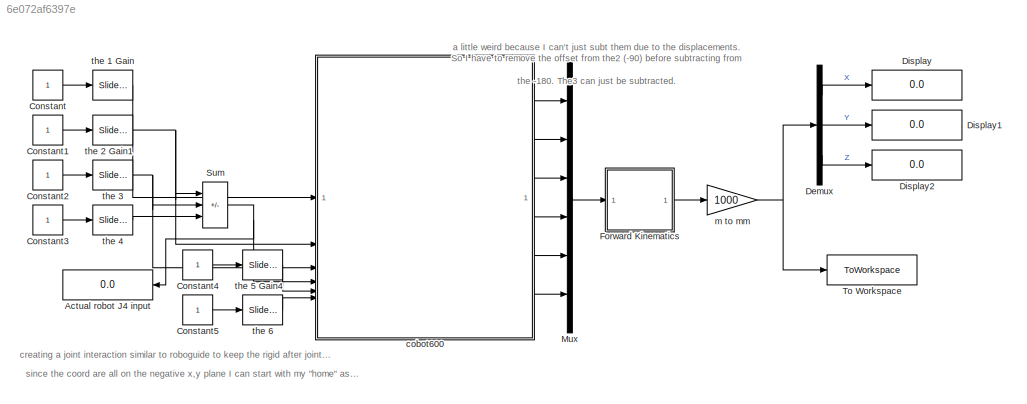
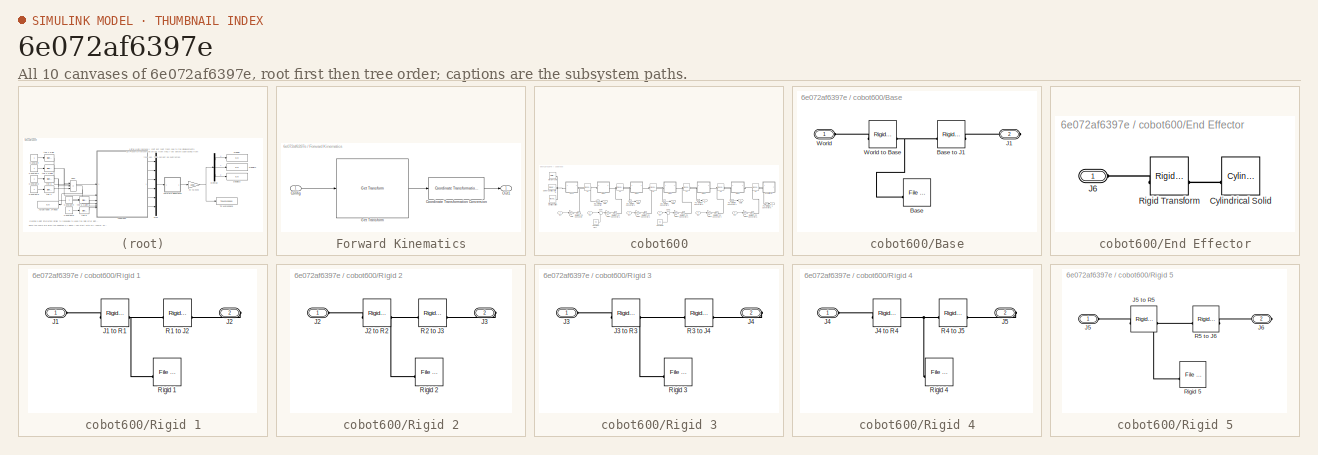
[diagram: thumbnail index - all 10 canvases of the model, root first then tree order]
MODEL slx_6e072af6397e
KIND model
CONFIG AbsTol = auto
CONFIG EnableMultiTasking = off
CONFIG FixedStep = auto
CONFIG MaxStep = auto
CONFIG MinStep = auto
CONFIG RelTol = 1e-3
CONFIG SampleTimeConstraint = Unconstrained
CONFIG SolverName = VariableStepAuto
CONFIG StartTime = 0.0
CONFIG StopTime = 3
BLOCK [Display] Actual robot J4 input
  Decimation = 1
BLOCK [Constant] Constant
BLOCK [Constant] Constant1
BLOCK [Constant] Constant2
BLOCK [Constant] Constant3
BLOCK [Constant] Constant4
BLOCK [Constant] Constant5
BLOCK [Demux] Demux
  Outputs = 3
BLOCK [Display] Display
  Decimation = 1
BLOCK [Display] Display1
  Decimation = 1
BLOCK [Display] Display2
  Decimation = 1
BLOCK [SubSystem] Forward Kinematics
BLOCK [Inport] Forward Kinematics/Config
BLOCK [Reference] Forward Kinematics/Coordinate Transformation Conversion  REF=robotcorelib/Coordinate Transformation Conversion
  LibrarySourceBlock = robotutilslib/Coordinate Transformation Conversion
  SourceBlock = robotcorelib/Coordinate Transformation Conversion
  SourceType = robotics.slcore.internal.block.CoordinateTransformationConversion
BLOCK [Reference] Forward Kinematics/Get Transform  REF=robotmaniplib/Get Transform
  SourceBlock = robotmaniplib/Get Transform
  SourceType = Get Transform
BLOCK [Outport] Forward Kinematics/Out1
BLOCK [Mux] Mux
  DisplayOption = bar
  Inputs = 6
BLOCK [Sum] Sum
  IconShape = rectangular
  Inputs = |--+
BLOCK [ToWorkspace] To Workspace
  FixptAsFi = on
  MaxDataPoints = inf
  SampleTime = -1
  Save2DSignal = 2-D array (concatenate along first dimension)
  VariableName = XYZ_Pos
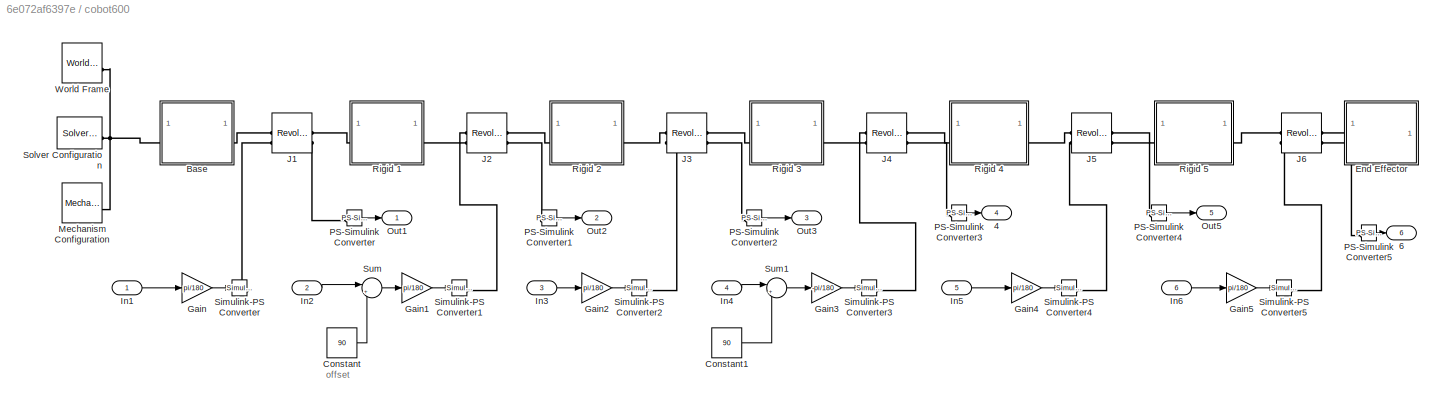
BLOCK [SubSystem] cobot600
BLOCK [Outport] cobot600/4
  Port = 4
BLOCK [Outport] cobot600/6
  NameLocation = top
  Port = 6
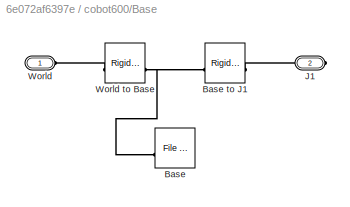
BLOCK [SubSystem] cobot600/Base
BLOCK [Reference] cobot600/Base/Base  REF=sm_lib/Body Elements/File Solid
  SourceBlock = sm_lib/Body Elements/File Solid
  SourceType = File Solid
BLOCK [Reference] cobot600/Base/Base to J1  REF=sm_lib/Frames and
Transforms/Rigid
Transform
  SourceBlock = sm_lib/Frames and\nTransforms/Rigid\nTransform
  SourceType = Rigid\nTransform
BLOCK [PMIOPort] cobot600/Base/J1
  Port = 2
  Side = Right
BLOCK [PMIOPort] cobot600/Base/World
  Side = Left
BLOCK [Reference] cobot600/Base/World to Base  REF=sm_lib/Frames and
Transforms/Rigid
Transform
  SourceBlock = sm_lib/Frames and\nTransforms/Rigid\nTransform
  SourceType = Rigid\nTransform
BLOCK [Constant] cobot600/Constant
  Value = 90
BLOCK [Constant] cobot600/Constant1
  Value = 90
BLOCK [SubSystem] cobot600/End Effector
BLOCK [Reference] cobot600/End Effector/Cylindrical Solid  REF=sm_lib/Body Elements/Cylindrical Solid
  SourceBlock = sm_lib/Body Elements/Cylindrical Solid
  SourceType = Cylindrical Solid
BLOCK [PMIOPort] cobot600/End Effector/J6
  Side = Left
BLOCK [Reference] cobot600/End Effector/Rigid Transform  REF=sm_lib/Frames and
Transforms/Rigid
Transform
  SourceBlock = sm_lib/Frames and\nTransforms/Rigid\nTransform
  SourceType = Rigid\nTransform
BLOCK [Gain] cobot600/Gain
  Gain = pi/180
BLOCK [Gain] cobot600/Gain1
  Gain = pi/180
BLOCK [Gain] cobot600/Gain2
  Gain = pi/180
BLOCK [Gain] cobot600/Gain3
  Gain = -pi/180
BLOCK [Gain] cobot600/Gain4
  Gain = pi/180
BLOCK [Gain] cobot600/Gain5
  Gain = pi/180
BLOCK [Inport] cobot600/In1
BLOCK [Inport] cobot600/In2
  Port = 2
BLOCK [Inport] cobot600/In3
  Port = 3
BLOCK [Inport] cobot600/In4
  Port = 4
BLOCK [Inport] cobot600/In5
  Port = 5
BLOCK [Inport] cobot600/In6
  Port = 6
BLOCK [Reference] cobot600/J1  REF=sm_lib/Joints/Revolute Joint
  SourceBlock = sm_lib/Joints/Revolute Joint
  SourceType = Revolute Joint
BLOCK [Reference] cobot600/J2  REF=sm_lib/Joints/Revolute Joint
  SourceBlock = sm_lib/Joints/Revolute Joint
  SourceType = Revolute Joint
BLOCK [Reference] cobot600/J3  REF=sm_lib/Joints/Revolute Joint
  SourceBlock = sm_lib/Joints/Revolute Joint
  SourceType = Revolute Joint
BLOCK [Reference] cobot600/J4  REF=sm_lib/Joints/Revolute Joint
  SourceBlock = sm_lib/Joints/Revolute Joint
  SourceType = Revolute Joint
BLOCK [Reference] cobot600/J5  REF=sm_lib/Joints/Revolute Joint
  SourceBlock = sm_lib/Joints/Revolute Joint
  SourceType = Revolute Joint
BLOCK [Reference] cobot600/J6  REF=sm_lib/Joints/Revolute Joint
  SourceBlock = sm_lib/Joints/Revolute Joint
  SourceType = Revolute Joint
BLOCK [Reference] cobot600/Mechanism Configuration  REF=sm_lib/Utilities/Mechanism
Configuration
  SourceBlock = sm_lib/Utilities/Mechanism\nConfiguration
  SourceType = Mechanism\nConfiguration
BLOCK [Outport] cobot600/Out1
BLOCK [Outport] cobot600/Out2
  Port = 2
BLOCK [Outport] cobot600/Out3
  Port = 3
BLOCK [Outport] cobot600/Out5
  Port = 5
BLOCK [Reference] cobot600/PS-Simulink Converter  REF=nesl_utility/PS-Simulink
Converter
  SourceBlock = nesl_utility/PS-Simulink\nConverter
  SourceType = PS-Simulink\nConverter
BLOCK [Reference] cobot600/PS-Simulink Converter1  REF=nesl_utility/PS-Simulink
Converter
  SourceBlock = nesl_utility/PS-Simulink\nConverter
  SourceType = PS-Simulink\nConverter
BLOCK [Reference] cobot600/PS-Simulink Converter2  REF=nesl_utility/PS-Simulink
Converter
  SourceBlock = nesl_utility/PS-Simulink\nConverter
  SourceType = PS-Simulink\nConverter
BLOCK [Reference] cobot600/PS-Simulink Converter3  REF=nesl_utility/PS-Simulink
Converter
  SourceBlock = nesl_utility/PS-Simulink\nConverter
  SourceType = PS-Simulink\nConverter
BLOCK [Reference] cobot600/PS-Simulink Converter4  REF=nesl_utility/PS-Simulink
Converter
  SourceBlock = nesl_utility/PS-Simulink\nConverter
  SourceType = PS-Simulink\nConverter
BLOCK [Reference] cobot600/PS-Simulink Converter5  REF=nesl_utility/PS-Simulink
Converter
  SourceBlock = nesl_utility/PS-Simulink\nConverter
  SourceType = PS-Simulink\nConverter
BLOCK [SubSystem] cobot600/Rigid 1
BLOCK [PMIOPort] cobot600/Rigid 1/J1
  Side = Left
BLOCK [Reference] cobot600/Rigid 1/J1 to R1  REF=sm_lib/Frames and
Transforms/Rigid
Transform
  SourceBlock = sm_lib/Frames and\nTransforms/Rigid\nTransform
  SourceType = Rigid\nTransform
BLOCK [PMIOPort] cobot600/Rigid 1/J2
  Port = 2
  Side = Right
BLOCK [Reference] cobot600/Rigid 1/R1 to J2  REF=sm_lib/Frames and
Transforms/Rigid
Transform
  SourceBlock = sm_lib/Frames and\nTransforms/Rigid\nTransform
  SourceType = Rigid\nTransform
BLOCK [Reference] cobot600/Rigid 1/Rigid 1  REF=sm_lib/Body Elements/File Solid
  SourceBlock = sm_lib/Body Elements/File Solid
  SourceType = File Solid
BLOCK [SubSystem] cobot600/Rigid 2
BLOCK [PMIOPort] cobot600/Rigid 2/J2
  Side = Left
BLOCK [Reference] cobot600/Rigid 2/J2 to R2  REF=sm_lib/Frames and
Transforms/Rigid
Transform
  SourceBlock = sm_lib/Frames and\nTransforms/Rigid\nTransform
  SourceType = Rigid\nTransform
BLOCK [PMIOPort] cobot600/Rigid 2/J3
  Port = 2
  Side = Right
BLOCK [Reference] cobot600/Rigid 2/R2 to J3  REF=sm_lib/Frames and
Transforms/Rigid
Transform
  SourceBlock = sm_lib/Frames and\nTransforms/Rigid\nTransform
  SourceType = Rigid\nTransform
BLOCK [Reference] cobot600/Rigid 2/Rigid 2  REF=sm_lib/Body Elements/File Solid
  SourceBlock = sm_lib/Body Elements/File Solid
  SourceType = File Solid
BLOCK [SubSystem] cobot600/Rigid 3
BLOCK [PMIOPort] cobot600/Rigid 3/J3
  Side = Left
BLOCK [Reference] cobot600/Rigid 3/J3 to R3  REF=sm_lib/Frames and
Transforms/Rigid
Transform
  SourceBlock = sm_lib/Frames and\nTransforms/Rigid\nTransform
  SourceType = Rigid\nTransform
BLOCK [PMIOPort] cobot600/Rigid 3/J4
  Port = 2
  Side = Right
BLOCK [Reference] cobot600/Rigid 3/R3 to J4  REF=sm_lib/Frames and
Transforms/Rigid
Transform
  SourceBlock = sm_lib/Frames and\nTransforms/Rigid\nTransform
  SourceType = Rigid\nTransform
BLOCK [Reference] cobot600/Rigid 3/Rigid 3  REF=sm_lib/Body Elements/File Solid
  SourceBlock = sm_lib/Body Elements/File Solid
  SourceType = File Solid
BLOCK [SubSystem] cobot600/Rigid 4
BLOCK [PMIOPort] cobot600/Rigid 4/J4
  Side = Left
BLOCK [Reference] cobot600/Rigid 4/J4 to R4  REF=sm_lib/Frames and
Transforms/Rigid
Transform
  SourceBlock = sm_lib/Frames and\nTransforms/Rigid\nTransform
  SourceType = Rigid\nTransform
BLOCK [PMIOPort] cobot600/Rigid 4/J5
  Port = 2
  Side = Right
BLOCK [Reference] cobot600/Rigid 4/R4 to J5  REF=sm_lib/Frames and
Transforms/Rigid
Transform
  SourceBlock = sm_lib/Frames and\nTransforms/Rigid\nTransform
  SourceType = Rigid\nTransform
BLOCK [Reference] cobot600/Rigid 4/Rigid 4  REF=sm_lib/Body Elements/File Solid
  SourceBlock = sm_lib/Body Elements/File Solid
  SourceType = File Solid
BLOCK [SubSystem] cobot600/Rigid 5
BLOCK [PMIOPort] cobot600/Rigid 5/J5
  Side = Left
BLOCK [Reference] cobot600/Rigid 5/J5 to R5  REF=sm_lib/Frames and
Transforms/Rigid
Transform
  SourceBlock = sm_lib/Frames and\nTransforms/Rigid\nTransform
  SourceType = Rigid\nTransform
BLOCK [PMIOPort] cobot600/Rigid 5/J6
  Port = 2
  Side = Right
BLOCK [Reference] cobot600/Rigid 5/R5 to J6  REF=sm_lib/Frames and
Transforms/Rigid
Transform
  SourceBlock = sm_lib/Frames and\nTransforms/Rigid\nTransform
  SourceType = Rigid\nTransform
BLOCK [Reference] cobot600/Rigid 5/Rigid 5  REF=sm_lib/Body Elements/File Solid
  SourceBlock = sm_lib/Body Elements/File Solid
  SourceType = File Solid
BLOCK [Reference] cobot600/Simulink-PS Converter  REF=nesl_utility/Simulink-PS
Converter
  SourceBlock = nesl_utility/Simulink-PS\nConverter
  SourceType = Simulink-PS\nConverter
BLOCK [Reference] cobot600/Simulink-PS Converter1  REF=nesl_utility/Simulink-PS
Converter
  SourceBlock = nesl_utility/Simulink-PS\nConverter
  SourceType = Simulink-PS\nConverter
BLOCK [Reference] cobot600/Simulink-PS Converter2  REF=nesl_utility/Simulink-PS
Converter
  SourceBlock = nesl_utility/Simulink-PS\nConverter
  SourceType = Simulink-PS\nConverter
BLOCK [Reference] cobot600/Simulink-PS Converter3  REF=nesl_utility/Simulink-PS
Converter
  SourceBlock = nesl_utility/Simulink-PS\nConverter
  SourceType = Simulink-PS\nConverter
BLOCK [Reference] cobot600/Simulink-PS Converter4  REF=nesl_utility/Simulink-PS
Converter
  SourceBlock = nesl_utility/Simulink-PS\nConverter
  SourceType = Simulink-PS\nConverter
BLOCK [Reference] cobot600/Simulink-PS Converter5  REF=nesl_utility/Simulink-PS
Converter
  SourceBlock = nesl_utility/Simulink-PS\nConverter
  SourceType = Simulink-PS\nConverter
BLOCK [Reference] cobot600/Solver Configuration  REF=nesl_utility/Solver
Configuration
  SourceBlock = nesl_utility/Solver\nConfiguration
  SourceType = Solver\nConfiguration
BLOCK [Sum] cobot600/Sum
  Inputs = |++
BLOCK [Sum] cobot600/Sum1
  Inputs = |++
BLOCK [Reference] cobot600/World Frame  REF=sm_lib/Frames and
Transforms/World Frame
  SourceBlock = sm_lib/Frames and\nTransforms/World Frame
  SourceType = World Frame
BLOCK [Gain] m to mm
  Gain = 1000
BLOCK [Reference] the 1 Gain  REF=simulink/Math
Operations/Slider
Gain
  SourceBlock = simulink/Math\nOperations/Slider\nGain
  SourceType = Slider Gain
BLOCK [Reference] the 2 Gain1  REF=simulink/Math
Operations/Slider
Gain
  SourceBlock = simulink/Math\nOperations/Slider\nGain
  SourceType = Slider Gain
BLOCK [Reference] the 3  REF=simulink/Math
Operations/Slider
Gain
  SourceBlock = simulink/Math\nOperations/Slider\nGain
  SourceType = Slider Gain
BLOCK [Reference] the 4   REF=simulink/Math
Operations/Slider
Gain
  SourceBlock = simulink/Math\nOperations/Slider\nGain
  SourceType = Slider Gain
BLOCK [Reference] the 5 Gain4  REF=simulink/Math
Operations/Slider
Gain
  SourceBlock = simulink/Math\nOperations/Slider\nGain
  SourceType = Slider Gain
BLOCK [Reference] the 6  REF=simulink/Math
Operations/Slider
Gain
  SourceBlock = simulink/Math\nOperations/Slider\nGain
  SourceType = Slider Gain
ANNOTATION (root): a little weird because I can't just subt them due to the displacements. So I have to remove the offset from the2 (-90) before subtracting from the -180. The3 can just be subtracted.
ANNOTATION (root): creating a joint interaction similar to roboguide to keep the rigid after joint 4 angle parallel to the table
ANNOTATION (root): since the coord are all on the negative x,y plane I can start with my "home" as -180 for the 4 and 90 for the 5. This puts the ee and j5 parallel over table.
ANNOTATION cobot600: offset
LINE Constant1:1 -> the 2 Gain1:1
LINE Constant2:1 -> the 3:1
LINE Constant3:1 -> the 4 :1
LINE Constant4:1 -> the 5 Gain4:1
LINE Constant5:1 -> the 6:1
LINE Constant:1 -> the 1 Gain:1
LINE Demux:1 -> Display:1
LINE Demux:2 -> Display1:1
LINE Demux:3 -> Display2:1
LINE Forward Kinematics/Config:1 -> Forward Kinematics/Get Transform:1
LINE Forward Kinematics/Coordinate Transformation Conversion:1 -> Forward Kinematics/Out1:1
LINE Forward Kinematics/Get Transform:1 -> Forward Kinematics/Coordinate Transformation Conversion:1
LINE Forward Kinematics:1 -> m to mm:1
LINE Mux:1 -> Forward Kinematics:1
NET Sum:1 -> Actual robot J4 input:1, cobot600:4
LINE cobot600/Constant1:1 -> cobot600/Sum1:2
LINE cobot600/Constant:1 -> cobot600/Sum:2
LINE cobot600/Gain1:1 -> cobot600/Simulink-PS Converter1:1
LINE cobot600/Gain2:1 -> cobot600/Simulink-PS Converter2:1
LINE cobot600/Gain3:1 -> cobot600/Simulink-PS Converter3:1
LINE cobot600/Gain4:1 -> cobot600/Simulink-PS Converter4:1
LINE cobot600/Gain5:1 -> cobot600/Simulink-PS Converter5:1
LINE cobot600/Gain:1 -> cobot600/Simulink-PS Converter:1
LINE cobot600/In1:1 -> cobot600/Gain:1
LINE cobot600/In2:1 -> cobot600/Sum:1
LINE cobot600/In3:1 -> cobot600/Gain2:1
LINE cobot600/In4:1 -> cobot600/Sum1:1
LINE cobot600/In5:1 -> cobot600/Gain4:1
LINE cobot600/In6:1 -> cobot600/Gain5:1
LINE cobot600/PS-Simulink Converter1:1 -> cobot600/Out2:1
LINE cobot600/PS-Simulink Converter2:1 -> cobot600/Out3:1
LINE cobot600/PS-Simulink Converter3:1 -> cobot600/4:1
LINE cobot600/PS-Simulink Converter4:1 -> cobot600/Out5:1
LINE cobot600/PS-Simulink Converter5:1 -> cobot600/6:1
LINE cobot600/PS-Simulink Converter:1 -> cobot600/Out1:1
LINE cobot600/Sum1:1 -> cobot600/Gain3:1
LINE cobot600/Sum:1 -> cobot600/Gain1:1
LINE cobot600:1 -> Mux:1
LINE cobot600:2 -> Mux:2
LINE cobot600:3 -> Mux:3
LINE cobot600:4 -> Mux:4
LINE cobot600:5 -> Mux:5
LINE cobot600:6 -> Mux:6
NET m to mm:1 -> Demux:1, To Workspace:1
LINE the 1 Gain:1 -> cobot600:1
NET the 2 Gain1:1 -> Sum:1, cobot600:2
NET the 3:1 -> Sum:2, cobot600:3
LINE the 4 :1 -> Sum:3
LINE the 5 Gain4:1 -> cobot600:5
LINE the 6:1 -> cobot600:6
PNET net1: cobot600/Base/Base to J1:LConn1 -- cobot600/Base/Base:RConn1 -- cobot600/Base/World to Base:RConn1
PLINE cobot600/Base/Base to J1:RConn1 -- cobot600/Base/J1:RConn1
PLINE cobot600/Base/World to Base:LConn1 -- cobot600/Base/World:RConn1
PNET net2: cobot600/Base:LConn1 -- cobot600/Mechanism Configuration:RConn1 -- cobot600/Solver Configuration:RConn1 -- cobot600/World Frame:RConn1
PLINE cobot600/Base:RConn1 -- cobot600/J1:LConn1
PLINE cobot600/End Effector/Cylindrical Solid:RConn1 -- cobot600/End Effector/Rigid Transform:RConn1
PLINE cobot600/End Effector/J6:RConn1 -- cobot600/End Effector/Rigid Transform:LConn1
PLINE cobot600/End Effector:LConn1 -- cobot600/J6:RConn1
PLINE cobot600/J1:LConn2 -- cobot600/Simulink-PS Converter:RConn1
PLINE cobot600/J1:RConn1 -- cobot600/Rigid 1:LConn1
PLINE cobot600/J1:RConn2 -- cobot600/PS-Simulink Converter:LConn1
PLINE cobot600/J2:LConn1 -- cobot600/Rigid 1:RConn1
PLINE cobot600/J2:LConn2 -- cobot600/Simulink-PS Converter1:RConn1
PLINE cobot600/J2:RConn1 -- cobot600/Rigid 2:LConn1
PLINE cobot600/J2:RConn2 -- cobot600/PS-Simulink Converter1:LConn1
PLINE cobot600/J3:LConn1 -- cobot600/Rigid 2:RConn1
PLINE cobot600/J3:LConn2 -- cobot600/Simulink-PS Converter2:RConn1
PLINE cobot600/J3:RConn1 -- cobot600/Rigid 3:LConn1
PLINE cobot600/J3:RConn2 -- cobot600/PS-Simulink Converter2:LConn1
PLINE cobot600/J4:LConn1 -- cobot600/Rigid 3:RConn1
PLINE cobot600/J4:LConn2 -- cobot600/Simulink-PS Converter3:RConn1
PLINE cobot600/J4:RConn1 -- cobot600/Rigid 4:LConn1
PLINE cobot600/J4:RConn2 -- cobot600/PS-Simulink Converter3:LConn1
PLINE cobot600/J5:LConn1 -- cobot600/Rigid 4:RConn1
PLINE cobot600/J5:LConn2 -- cobot600/Simulink-PS Converter4:RConn1
PLINE cobot600/J5:RConn1 -- cobot600/Rigid 5:LConn1
PLINE cobot600/J5:RConn2 -- cobot600/PS-Simulink Converter4:LConn1
PLINE cobot600/J6:LConn1 -- cobot600/Rigid 5:RConn1
PLINE cobot600/J6:LConn2 -- cobot600/Simulink-PS Converter5:RConn1
PLINE cobot600/J6:RConn2 -- cobot600/PS-Simulink Converter5:LConn1
PLINE cobot600/Rigid 1/J1 to R1:LConn1 -- cobot600/Rigid 1/J1:RConn1
PNET net3: cobot600/Rigid 1/J1 to R1:RConn1 -- cobot600/Rigid 1/R1 to J2:LConn1 -- cobot600/Rigid 1/Rigid 1:RConn1
PLINE cobot600/Rigid 1/J2:RConn1 -- cobot600/Rigid 1/R1 to J2:RConn1
PLINE cobot600/Rigid 2/J2 to R2:LConn1 -- cobot600/Rigid 2/J2:RConn1
PNET net4: cobot600/Rigid 2/J2 to R2:RConn1 -- cobot600/Rigid 2/R2 to J3:LConn1 -- cobot600/Rigid 2/Rigid 2:RConn1
PLINE cobot600/Rigid 2/J3:RConn1 -- cobot600/Rigid 2/R2 to J3:RConn1
PLINE cobot600/Rigid 3/J3 to R3:LConn1 -- cobot600/Rigid 3/J3:RConn1
PNET net5: cobot600/Rigid 3/J3 to R3:RConn1 -- cobot600/Rigid 3/R3 to J4:LConn1 -- cobot600/Rigid 3/Rigid 3:RConn1
PLINE cobot600/Rigid 3/J4:RConn1 -- cobot600/Rigid 3/R3 to J4:RConn1
PLINE cobot600/Rigid 4/J4 to R4:LConn1 -- cobot600/Rigid 4/J4:RConn1
PNET net6: cobot600/Rigid 4/J4 to R4:RConn1 -- cobot600/Rigid 4/R4 to J5:LConn1 -- cobot600/Rigid 4/Rigid 4:RConn1
PLINE cobot600/Rigid 4/J5:RConn1 -- cobot600/Rigid 4/R4 to J5:RConn1
PLINE cobot600/Rigid 5/J5 to R5:LConn1 -- cobot600/Rigid 5/J5:RConn1
PNET net7: cobot600/Rigid 5/J5 to R5:RConn1 -- cobot600/Rigid 5/R5 to J6:LConn1 -- cobot600/Rigid 5/Rigid 5:RConn1
PLINE cobot600/Rigid 5/J6:RConn1 -- cobot600/Rigid 5/R5 to J6:RConn1
note: NET lines group one-source signal fan-out (src -> all destinations, sorted); 1:1 wires keep LINE; PNET lines group multi-terminal physical nets as a canonical sorted terminal list (undirected conserving connections); 2-terminal nets keep the pairwise PLINE form
